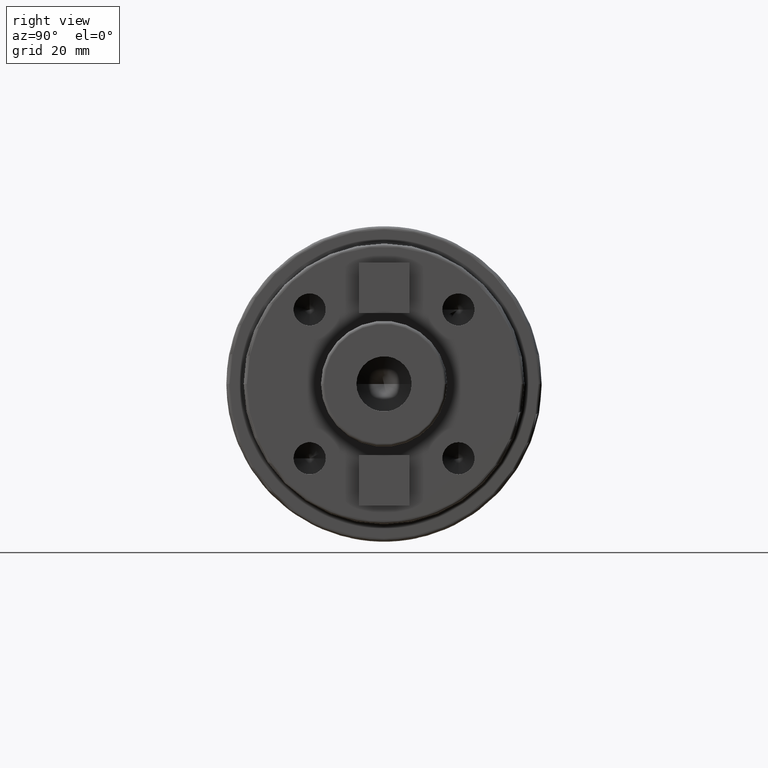
[diagram: clean part render]
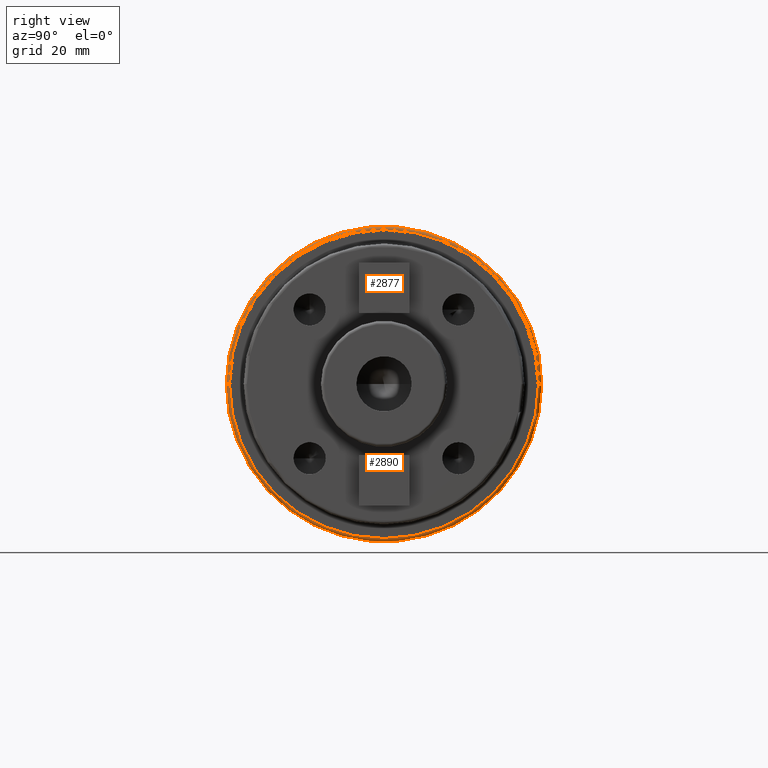
[diagram: same view with one multi-face feature highlighted, each face labeled with its STEP entity id]
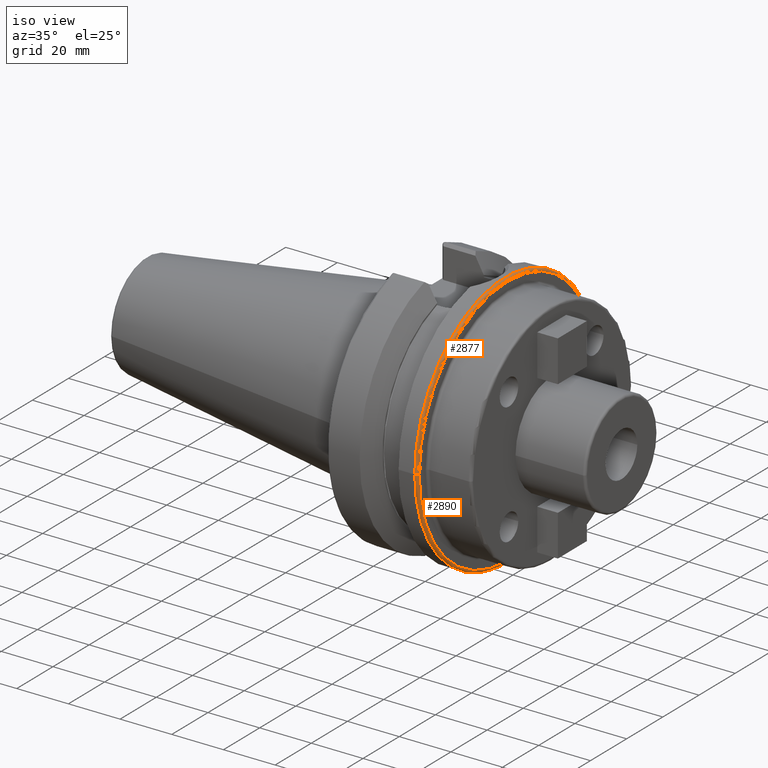
[diagram: same view with one multi-face feature highlighted, each face labeled with its STEP entity id]
A machine part, right view. The highlighted faces form ONE feature: a constant-radius fillet chain: 2 tangent blend faces with common blend radius 1 mm. The faces share edges in the B-rep.
A second angle (iso view) of the same feature is appended — it is thin or edge-on in the first view.
Their STEP definitions:
[1] entity #2877 (Torus):
#787=CARTESIAN_POINT('',(3.7E1,0.E0,0.E0));
#788=DIRECTION('',(1.E0,0.E0,0.E0));
#789=DIRECTION('',(0.E0,1.E0,0.E0));
#790=AXIS2_PLACEMENT_3D('',#787,#788,#789);
#814=CARTESIAN_POINT('',(3.8E1,0.E0,0.E0));
#815=DIRECTION('',(1.E0,0.E0,0.E0));
#816=DIRECTION('',(0.E0,1.E0,0.E0));
#817=AXIS2_PLACEMENT_3D('',#814,#815,#816);
#819=CARTESIAN_POINT('',(3.7E1,4.89875E1,0.E0));
#820=DIRECTION('',(0.E0,0.E0,1.E0));
#821=DIRECTION('',(1.E0,0.E0,0.E0));
#822=AXIS2_PLACEMENT_3D('',#819,#820,#821);
#824=CARTESIAN_POINT('',(3.7E1,-4.89875E1,-1.199847701465E-14));
#825=DIRECTION('',(0.E0,0.E0,-1.E0));
#826=DIRECTION('',(1.E0,0.E0,0.E0));
#827=AXIS2_PLACEMENT_3D('',#824,#825,#826);
#1510=CARTESIAN_POINT('',(3.7E1,4.99875E1,0.E0));
#1511=VERTEX_POINT('',#1510);
#1512=CARTESIAN_POINT('',(3.7E1,-4.99875E1,0.E0));
#1513=VERTEX_POINT('',#1512);
#1580=CARTESIAN_POINT('',(3.8E1,4.89875E1,0.E0));
#1581=VERTEX_POINT('',#1580);
#1582=CARTESIAN_POINT('',(3.8E1,-4.89875E1,-1.199847701465E-14));
#1583=VERTEX_POINT('',#1582);
#2863=CARTESIAN_POINT('',(3.7E1,0.E0,0.E0));
#2864=DIRECTION('',(1.E0,0.E0,0.E0));
#2865=DIRECTION('',(0.E0,-1.E0,0.E0));
#2866=AXIS2_PLACEMENT_3D('',#2863,#2864,#2865);
#2867=TOROIDAL_SURFACE('',#2866,4.89875E1,1.E0);
#2869=ORIENTED_EDGE('',*,*,#2868,.F.);
#2871=ORIENTED_EDGE('',*,*,#2870,.T.);
#2873=ORIENTED_EDGE('',*,*,#2872,.T.);
#2874=ORIENTED_EDGE('',*,*,#2854,.F.);
#2875=EDGE_LOOP('',(#2869,#2871,#2873,#2874));
#2876=FACE_OUTER_BOUND('',#2875,.F.);
#2877=ADVANCED_FACE('',(#2876),#2867,.T.);
#791=CIRCLE('',#790,4.99875E1);
#818=CIRCLE('',#817,4.89875E1);
#823=CIRCLE('',#822,1.E0);
#828=CIRCLE('',#827,1.E0);
#2854=EDGE_CURVE('',#1511,#1513,#791,.T.);
#2868=EDGE_CURVE('',#1581,#1511,#823,.T.);
#2870=EDGE_CURVE('',#1581,#1583,#818,.T.);
#2872=EDGE_CURVE('',#1583,#1513,#828,.T.);
[2] entity #2890 (Torus):
#254=CARTESIAN_POINT('',(3.7E1,0.E0,0.E0));
#255=DIRECTION('',(-1.E0,0.E0,0.E0));
#256=DIRECTION('',(0.E0,1.E0,0.E0));
#257=AXIS2_PLACEMENT_3D('',#254,#255,#256);
#819=CARTESIAN_POINT('',(3.7E1,4.89875E1,0.E0));
#820=DIRECTION('',(0.E0,0.E0,1.E0));
#821=DIRECTION('',(1.E0,0.E0,0.E0));
#822=AXIS2_PLACEMENT_3D('',#819,#820,#821);
#824=CARTESIAN_POINT('',(3.7E1,-4.89875E1,-1.199847701465E-14));
#825=DIRECTION('',(0.E0,0.E0,-1.E0));
#826=DIRECTION('',(1.E0,0.E0,0.E0));
#827=AXIS2_PLACEMENT_3D('',#824,#825,#826);
#829=CARTESIAN_POINT('',(3.8E1,0.E0,0.E0));
#830=DIRECTION('',(-1.E0,0.E0,0.E0));
#831=DIRECTION('',(0.E0,1.E0,0.E0));
#832=AXIS2_PLACEMENT_3D('',#829,#830,#831);
#1510=CARTESIAN_POINT('',(3.7E1,4.99875E1,0.E0));
#1511=VERTEX_POINT('',#1510);
#1512=CARTESIAN_POINT('',(3.7E1,-4.99875E1,0.E0));
#1513=VERTEX_POINT('',#1512);
#1580=CARTESIAN_POINT('',(3.8E1,4.89875E1,0.E0));
#1581=VERTEX_POINT('',#1580);
#1582=CARTESIAN_POINT('',(3.8E1,-4.89875E1,-1.199847701465E-14));
#1583=VERTEX_POINT('',#1582);
#2878=CARTESIAN_POINT('',(3.7E1,0.E0,0.E0));
#2879=DIRECTION('',(1.E0,0.E0,0.E0));
#2880=DIRECTION('',(0.E0,-1.E0,0.E0));
#2881=AXIS2_PLACEMENT_3D('',#2878,#2879,#2880);
#2882=TOROIDAL_SURFACE('',#2881,4.89875E1,1.E0);
#2883=ORIENTED_EDGE('',*,*,#2868,.T.);
#2884=ORIENTED_EDGE('',*,*,#2117,.T.);
#2885=ORIENTED_EDGE('',*,*,#2872,.F.);
#2887=ORIENTED_EDGE('',*,*,#2886,.F.);
#2888=EDGE_LOOP('',(#2883,#2884,#2885,#2887));
#2889=FACE_OUTER_BOUND('',#2888,.F.);
#2890=ADVANCED_FACE('',(#2889),#2882,.T.);
#258=CIRCLE('',#257,4.99875E1);
#823=CIRCLE('',#822,1.E0);
#828=CIRCLE('',#827,1.E0);
#833=CIRCLE('',#832,4.89875E1);
#2117=EDGE_CURVE('',#1511,#1513,#258,.T.);
#2868=EDGE_CURVE('',#1581,#1511,#823,.T.);
#2872=EDGE_CURVE('',#1583,#1513,#828,.T.);
#2886=EDGE_CURVE('',#1581,#1583,#833,.T.);